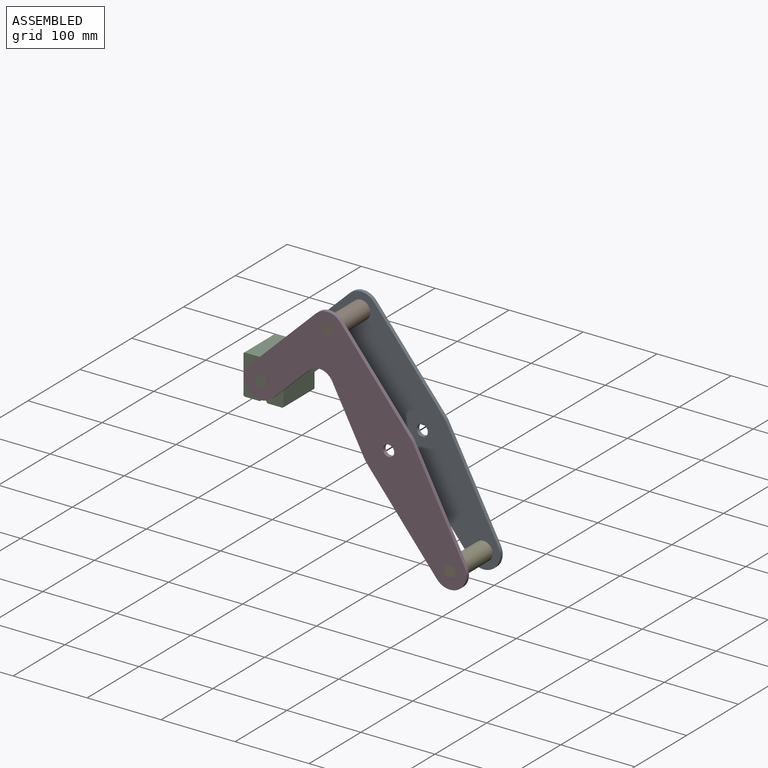
[diagram: assembled view]
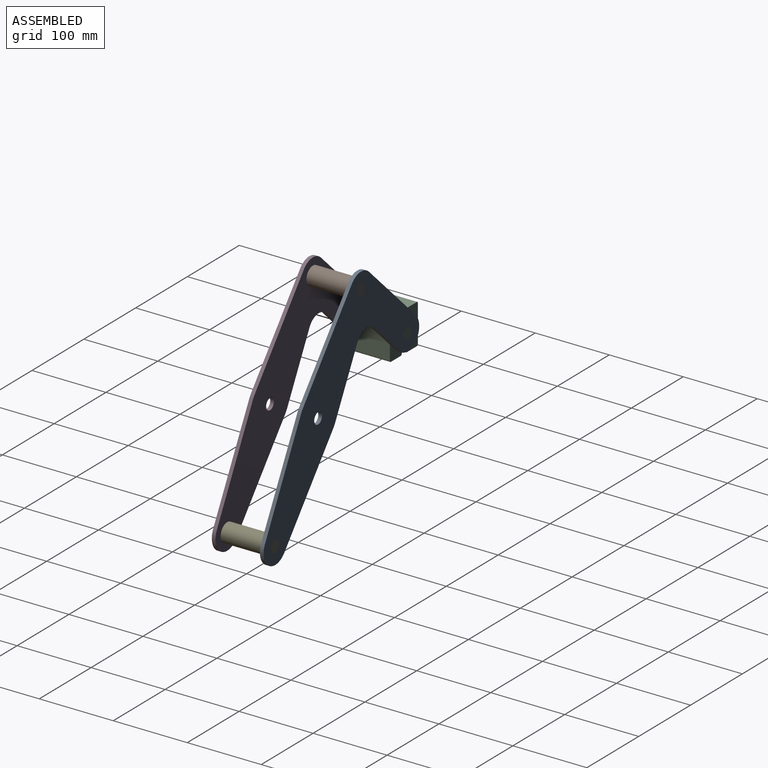
[diagram: assembled view, second angle]
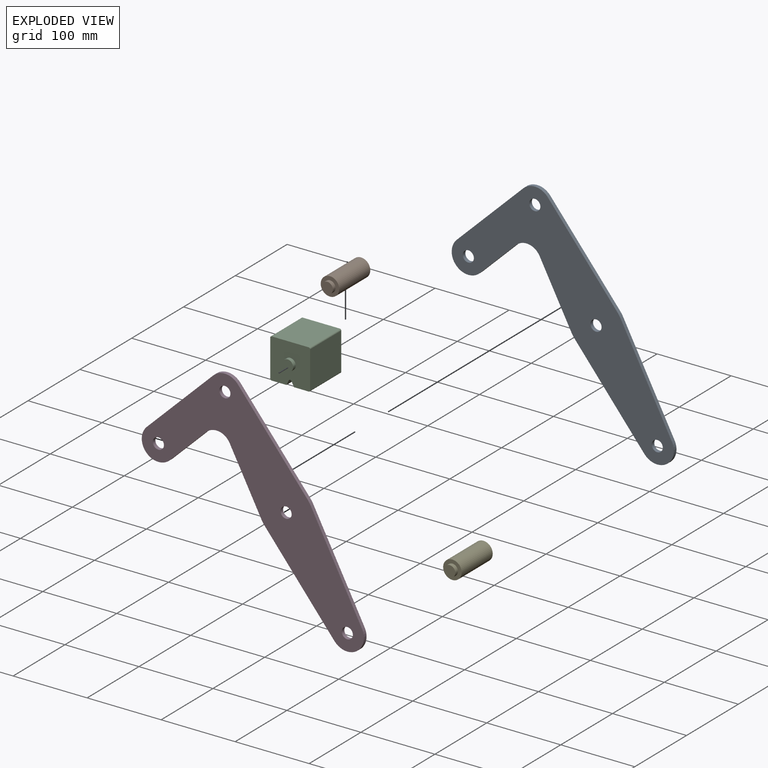
[diagram: exploded view]
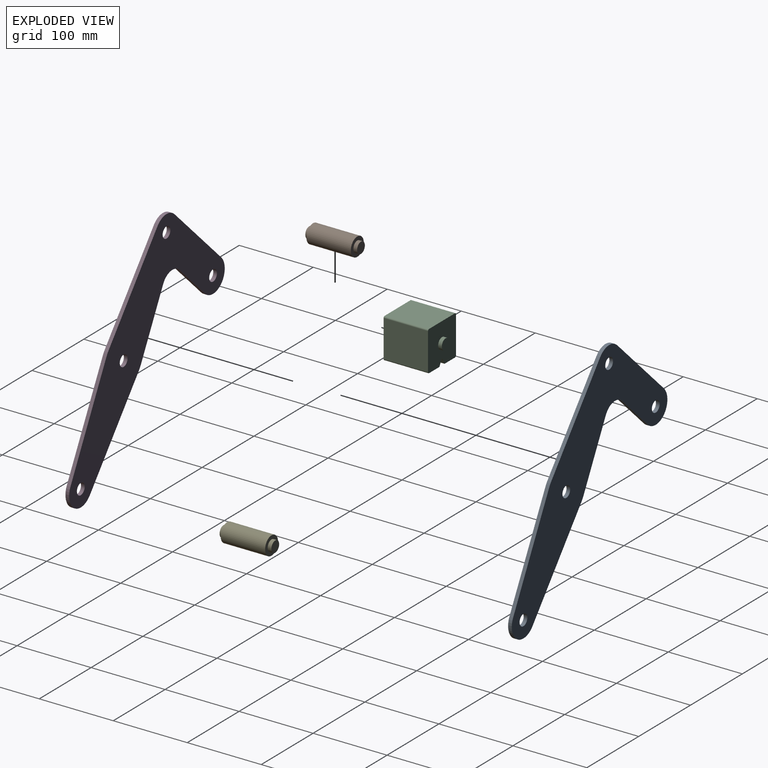
[diagram: exploded view, second angle]
ASSEMBLY  parts=5 mates=3
PART A: 18 faces, bbox 309.5x5x285.1 mm
  f0: plane 92.03x84.59mm, normal (-0.74,0,0.68), area 625mm2, adj f1,f14,f16,f17
  f1: cylinder r=22.5mm len=39.07mm, axis (0,1,0), area 353.4mm2, adj f0,f2,f16,f17
  f2: plane 50.28x46.21mm, normal (0.74,0,-0.68), area 341.4mm2, adj f1,f3,f16,f17
  f3: cylinder r=20mm len=31.85mm, axis (0,1,0), area 185.5mm2, adj f2,f4,f16,f17
  f4: plane 79.23x47.81mm, normal (-0.86,0,-0.52), area 462.7mm2, adj f3,f5,f16,f17
  f5: cylinder r=37.5mm len=6mm, axis (0,1,0), area 37.6mm2, adj f4,f6,f16,f17
  f6: plane 109.88x101mm, normal (-0.74,0,-0.68), area 746.2mm2, adj f5,f7,f16,f17
  f7: cylinder r=22.5mm len=39.07mm, axis (0,1,0), area 330.9mm2, adj f6,f8,f16,f17
  f8: plane 127.78x77.11mm, normal (0.86,0,0.52), area 746.2mm2, adj f7,f9,f16,f17
  f9: cylinder r=37.5mm len=6mm, axis (0,1,0), area 37.6mm2, adj f8,f10,f16,f17
  f10: plane 109.88x101mm, normal (0.74,0,0.68), area 746.2mm2, adj f9,f14,f16,f17
  f11: cylinder r=7.5mm len=15mm, axis (0,1,0), area 235.6mm2, adj f16,f17
  f12: cylinder r=7.5mm len=15mm, axis (0,1,0), area 235.6mm2, adj f16,f17
  f13: cylinder r=7.5mm len=15mm, axis (0,1,0), area 235.6mm2, adj f16,f17
  f14: cylinder r=22.5mm len=33.13mm, axis (0,1,0), area 186.2mm2, adj f0,f10,f16,f17
  f15: cylinder r=7.5mm len=15mm, axis (0,1,0), area 235.6mm2, adj f16,f17
  f16: plane 309.5x285.07mm, normal (0,-1,0), area 24555.4mm2, adj f0,f1,f2,f3,f4,f5,f6,f7
  f17: plane 309.5x285.07mm, normal (0,1,0), area 24555.4mm2, adj f0,f1,f2,f3,f4,f5,f6,f7
PART B: 7 faces, bbox 25x70x25 mm
  f0: cylinder r=12.5mm len=60mm, axis (0,-1,0), area 4712.4mm2, adj f2,f5
  f1: cylinder r=7.5mm len=15mm, axis (0,1,0), area 235.6mm2, adj f2,f3
  f2: plane 25x25mm, normal (0,-1,0), area 314.2mm2, adj f0,f1
  f3: plane 15x15mm, normal (0,-1,0), area 176.7mm2, adj f1
  f4: cylinder r=7.5mm len=15mm, axis (0,-1,0), area 235.6mm2, adj f5,f6
  f5: plane 25x25mm, normal (0,1,0), area 314.2mm2, adj f0,f4
  f6: plane 15x15mm, normal (0,1,0), area 176.7mm2, adj f4
PART C: 18 faces, bbox 54x70x54 mm
  f0: plane 60x50.01mm, normal (0,0,1), area 3000.4mm2, adj f7,f10,f13,f17
  f1: plane 60x50.01mm, normal (1,0,0), area 3000.4mm2, adj f7,f10,f13,f14
  f2: plane 60x20mm, normal (0,0,-1), area 1200.2mm2, adj f3,f7,f10,f14
  f3: plane 60x6.42mm, normal (-0.89,0,-0.45), area 430.8mm2, adj f2,f7,f10,f15
  f4: plane 60x6.42mm, normal (0.89,0,-0.45), area 430.8mm2, adj f5,f7,f10,f15
  f5: plane 60x20mm, normal (0,0,-1), area 1200.2mm2, adj f4,f7,f10,f16
  f6: plane 60x50.01mm, normal (-1,0,0), area 3000.4mm2, adj f7,f10,f16,f17
  f7: plane 54.01x54.01mm, normal (0,-1,0), area 2690.1mm2, adj f0,f1,f2,f3,f4,f5,f6,f9
  f8: plane 15x15mm, normal (0,-1,0), area 176.7mm2, adj f9
  f9: cylinder r=7.5mm len=15mm, axis (0,1,0), area 235.6mm2, adj f7,f8
  f10: plane 54.01x54.01mm, normal (0,1,0), area 2690.1mm2, adj f0,f1,f2,f3,f4,f5,f6,f12
  f11: plane 15x15mm, normal (0,1,0), area 176.7mm2, adj f12
  f12: cylinder r=7.5mm len=15mm, axis (0,-1,0), area 235.6mm2, adj f10,f11
  f13: cylinder r=2mm len=60mm, axis (0,1,0), area 188.5mm2, adj f0,f1,f7,f10
  f14: cylinder r=2mm len=60mm, axis (0,-1,0), area 188.5mm2, adj f1,f2,f7,f10
  f15: cylinder r=2mm len=60mm, axis (0,-1,0), area 265.7mm2, adj f3,f4,f7,f10
  f16: cylinder r=2mm len=60mm, axis (0,1,0), area 188.5mm2, adj f5,f6,f7,f10
  f17: cylinder r=2mm len=60mm, axis (0,-1,0), area 188.5mm2, adj f0,f6,f7,f10
PART D: same geometry as A
PART E: same geometry as B
PLACE A rot(axis=(0,1,0),3.4deg) t=(-31.06,20.95,11.55)mm
PLACE B rot(axis=(0,1,0),3.4deg) t=(-31.06,-44.05,11.55)mm
PLACE C t=(-29.2,-44.05,20.43)mm
PLACE D rot(axis=(0,1,0),3.4deg) t=(-31.06,-44.05,11.55)mm fixed
PLACE E rot(axis=(0,1,0),3.4deg) t=(134.4,-44.05,-238.7)mm
MATE revolute D.f1 <-> C.f9  axis (0,1,0) through (-180.94,-44.05,47.6)mm
MATE fastened D.f7 <-> E.f0  axis (0,1,0) through (74.39,-44.05,-115.75)mm
MATE fastened B.f0 <-> A.f13  axis (0,1,0) through (-91.08,15.95,134.49)mm
